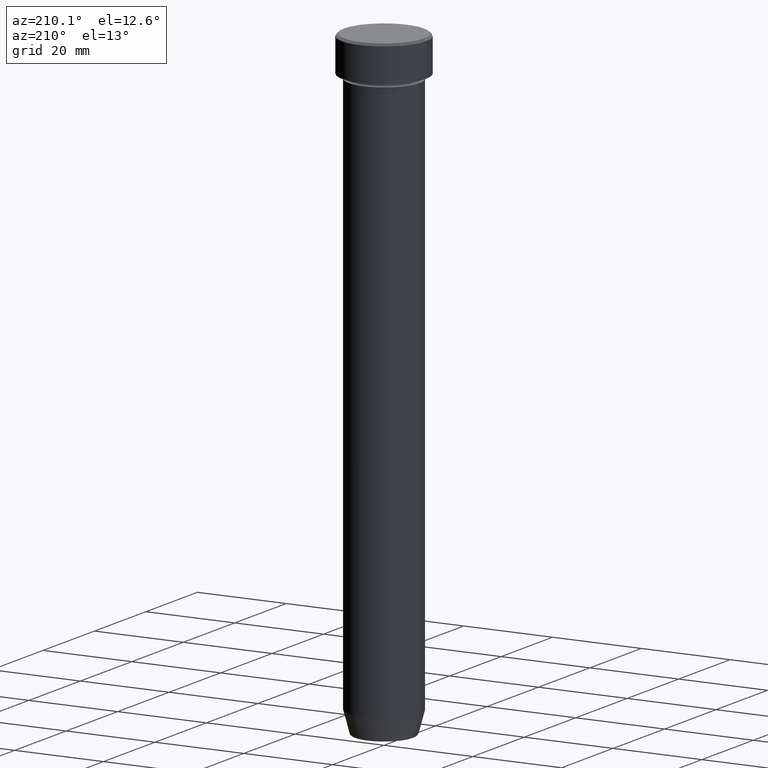
[diagram: clean part render]
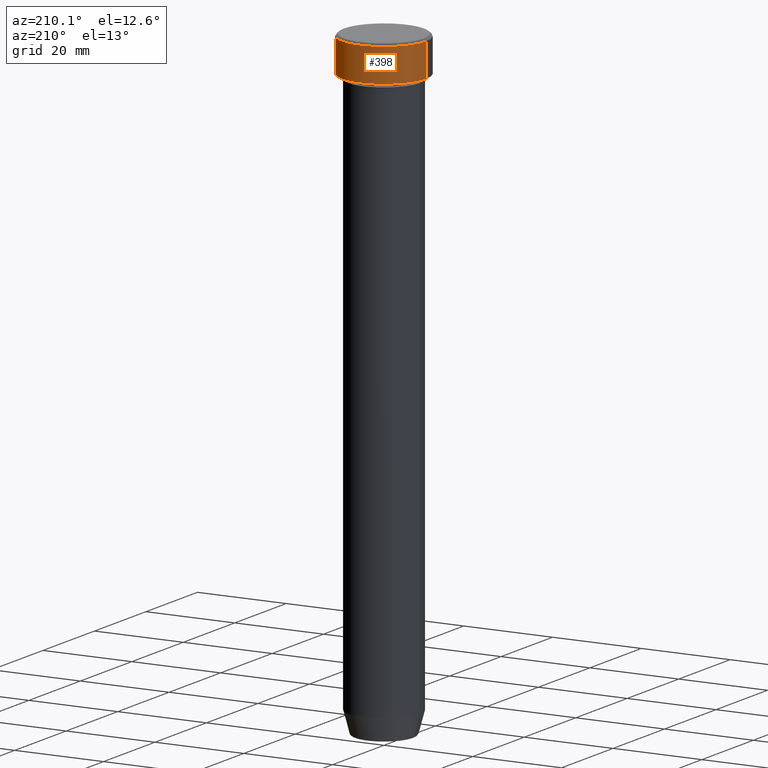
[diagram: same view with one face highlighted and labeled with its STEP entity id]
A machine part, auxiliary view. The second image highlights one B-rep face of the part: STEP entity #398.
In plain terms, the highlighted cylindrical surface (partial cylindrical patch) has radius 9.5 mm, axis along (-0, -0, 1).
Its self-contained STEP definition (entity closure, byte-faithful):
#29 = DIRECTION ( 'NONE',  ( -0.000000000000000000, -0.000000000000000000, 1.000000000000000000 ) ) ;
#39 = CARTESIAN_POINT ( 'NONE',  ( 0.000000000000000000, 0.000000000000000000, -8.000000000000000000 ) ) ;
#43 = LINE ( 'NONE', #273, #380 ) ;
#57 = EDGE_CURVE ( 'NONE', #152, #295, #43, .T. ) ;
#75 = CARTESIAN_POINT ( 'NONE',  ( 0.000000000000000000, 0.000000000000000000, -0.4999999999999968914 ) ) ;
#94 = CARTESIAN_POINT ( 'NONE',  ( 9.500000000000000000, 0.000000000000000000, 0.000000000000000000 ) ) ;
#108 = ORIENTED_EDGE ( 'NONE', *, *, #538, .T. ) ;
#147 = ORIENTED_EDGE ( 'NONE', *, *, #554, .T. ) ;
#151 = VECTOR ( 'NONE', #502, 1000.000000000000000 ) ;
#152 = VERTEX_POINT ( 'NONE', #241 ) ;
#186 = EDGE_CURVE ( 'NONE', #202, #424, #323, .T. ) ;
#202 = VERTEX_POINT ( 'NONE', #419 ) ;
#223 = CARTESIAN_POINT ( 'NONE',  ( 9.500000000000000000, 0.000000000000000000, -0.4999999999999968914 ) ) ;
#241 = CARTESIAN_POINT ( 'NONE',  ( -9.500000000000000000, 1.163414459189985485E-15, -8.000000000000000000 ) ) ;
#270 = DIRECTION ( 'NONE',  ( 1.000000000000000000, 0.000000000000000000, 0.000000000000000000 ) ) ;
#273 = CARTESIAN_POINT ( 'NONE',  ( -9.500000000000000000, 1.163414459189985485E-15, 0.000000000000000000 ) ) ;
#281 = CIRCLE ( 'NONE', #437, 9.500000000000000000 ) ;
#295 = VERTEX_POINT ( 'NONE', #389 ) ;
#323 = LINE ( 'NONE', #94, #151 ) ;
#339 = AXIS2_PLACEMENT_3D ( 'NONE', #357, #355, #270 ) ;
#355 = DIRECTION ( 'NONE',  ( -0.000000000000000000, -0.000000000000000000, 1.000000000000000000 ) ) ;
#357 = CARTESIAN_POINT ( 'NONE',  ( 0.000000000000000000, 0.000000000000000000, 0.000000000000000000 ) ) ;
#361 = DIRECTION ( 'NONE',  ( 1.000000000000000000, 0.000000000000000000, 0.000000000000000000 ) ) ;
#362 = DIRECTION ( 'NONE',  ( -0.000000000000000000, -0.000000000000000000, 1.000000000000000000 ) ) ;
#365 = DIRECTION ( 'NONE',  ( 1.000000000000000000, 0.000000000000000000, 0.000000000000000000 ) ) ;
#380 = VECTOR ( 'NONE', #362, 1000.000000000000000 ) ;
#389 = CARTESIAN_POINT ( 'NONE',  ( -9.500000000000000000, 1.163414459189985485E-15, -0.4999999999999968914 ) ) ;
#396 = CYLINDRICAL_SURFACE ( 'NONE', #339, 9.500000000000000000 ) ;
#398 = ADVANCED_FACE ( 'NONE', ( #486 ), #396, .T. ) ;
#419 = CARTESIAN_POINT ( 'NONE',  ( 9.500000000000000000, 0.000000000000000000, -8.000000000000000000 ) ) ;
#424 = VERTEX_POINT ( 'NONE', #223 ) ;
#437 = AXIS2_PLACEMENT_3D ( 'NONE', #75, #556, #365 ) ;
#451 = CIRCLE ( 'NONE', #540, 9.500000000000000000 ) ;
#486 = FACE_OUTER_BOUND ( 'NONE', #512, .T. ) ;
#487 = ORIENTED_EDGE ( 'NONE', *, *, #57, .T. ) ;
#502 = DIRECTION ( 'NONE',  ( -0.000000000000000000, -0.000000000000000000, 1.000000000000000000 ) ) ;
#512 = EDGE_LOOP ( 'NONE', ( #108, #487, #147, #532 ) ) ;
#532 = ORIENTED_EDGE ( 'NONE', *, *, #186, .F. ) ;
#538 = EDGE_CURVE ( 'NONE', #202, #152, #451, .T. ) ;
#540 = AXIS2_PLACEMENT_3D ( 'NONE', #39, #29, #361 ) ;
#554 = EDGE_CURVE ( 'NONE', #295, #424, #281, .T. ) ;
#556 = DIRECTION ( 'NONE',  ( 0.000000000000000000, 0.000000000000000000, -1.000000000000000000 ) ) ;